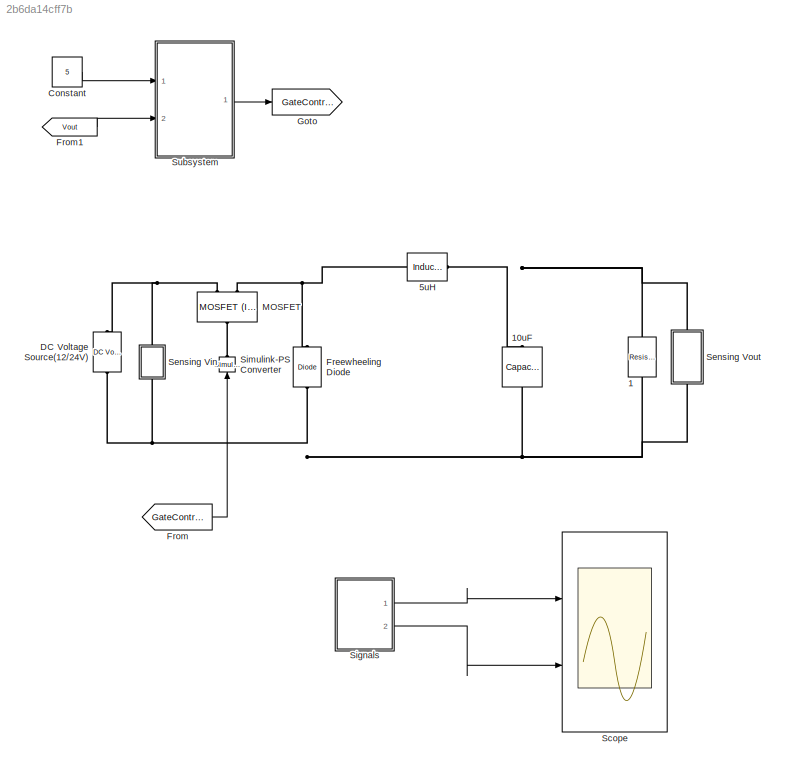
MODEL slx_2b6da14cff7b
KIND model
CONFIG AbsTol = auto
CONFIG EnableMultiTasking = off
CONFIG FixedStep = auto
CONFIG MaxStep = auto
CONFIG MinStep = auto
CONFIG RelTol = 1e-3
CONFIG SampleTimeConstraint = Unconstrained
CONFIG SolverName = VariableStepAuto
CONFIG StartTime = 0.0
CONFIG StopTime = 10.0
BLOCK [Reference] 1  REF=ee_lib/Passive/Resistor
  NameLocation = left
  Ports = [0, 0, 0, 0, 0, 1, 1]
  SourceBlock = ee_lib/Passive/Resistor
  SourceProductBaseCode = PS
  SourceType = Resistor
BLOCK [Reference] 10uF  REF=ee_lib/Passive/Capacitor
  NameLocation = left
  Ports = [0, 0, 0, 0, 0, 1, 1]
  SourceBlock = ee_lib/Passive/Capacitor
  SourceProductBaseCode = PS
  SourceType = Capacitor
BLOCK [Reference] 5uH  REF=ee_lib/Passive/Inductor
  Ports = [0, 0, 0, 0, 0, 1, 1]
  SourceBlock = ee_lib/Passive/Inductor
  SourceProductBaseCode = PS
  SourceType = Inductor
BLOCK [Constant] Constant
  Value = 5
BLOCK [Reference] DC Voltage Source(12//24V)  REF=ee_lib/Additional
Components/SPICE Sources/DC Voltage Source
  NameLocation = left
  Ports = [0, 0, 0, 0, 0, 1, 1]
  SourceBlock = ee_lib/Additional\nComponents/SPICE Sources/DC Voltage Source
  SourceProductBaseCode = PS
  SourceType = DC Voltage Source
BLOCK [Reference] Freewheeling Diode  REF=ee_lib/Semiconductors &
Converters/Diode
  NameLocation = right
  Ports = [0, 0, 0, 0, 0, 1, 1]
  SourceBlock = ee_lib/Semiconductors &\nConverters/Diode
  SourceProductBaseCode = PS
  SourceType = Diode
BLOCK [From] From
  GotoTag = GateControl
BLOCK [From] From1
  GotoTag = Vout
  TagVisibility = global
BLOCK [Goto] Goto
  GotoTag = GateControl
BLOCK [Reference] MOSFET  REF=ee_lib/Semiconductors &
Converters/MOSFET
(Ideal,
Switching)
  NameLocation = right
  Ports = [0, 0, 0, 0, 0, 1, 2]
  SourceBlock = ee_lib/Semiconductors &\nConverters/MOSFET\n(Ideal,\nSwitching)
  SourceProductBaseCode = PS
  SourceType = MOSFET\n(Ideal,\nSwitching)
BLOCK [Scope] Scope
  Floating = off
  NumInputPorts = 2
  Ports = [2]
  ScopeSpecificationString = Simulink.scopes.TimeScopeBlockCfg('CurrentConfiguration', extmgr.ConfigurationSet(extmgr.Configuration('Core','General UI',true),extmgr.Configuration('Core','Source UI',true),extmgr.Configuration('Sources','WiredSimulink',true),extmgr.Configuration('Visuals','Time Domain',true),extmgr.Configuration('Tools','Plot Navigation',true),extmgr.Configuration('Tools','Measurements',true)),'Version','2021a'...<+1ch>
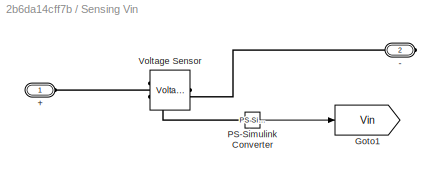
BLOCK [SubSystem] Sensing Vin
  NameLocation = right
  Ports = [0, 0, 0, 0, 0, 1, 1]
  RequestExecContextInheritance = off
BLOCK [PMIOPort] Sensing Vin/+
  Side = Left
BLOCK [PMIOPort] Sensing Vin/-
  Port = 2
  Side = Right
BLOCK [Goto] Sensing Vin/Goto1
  GotoTag = Vin
  TagVisibility = global
BLOCK [Reference] Sensing Vin/PS-Simulink Converter  REF=nesl_utility/PS-Simulink
Converter
  Ports = [0, 1, 0, 0, 0, 1]
  SourceBlock = nesl_utility/PS-Simulink\nConverter
  SourceProductBaseCode = PW,SS
  SourceType = PS-Simulink\nConverter
BLOCK [Reference] Sensing Vin/Voltage Sensor  REF=fl_lib/Electrical/Electrical Sensors/Voltage Sensor
  NameLocation = top
  Ports = [0, 0, 0, 0, 0, 1, 2]
  SourceBlock = fl_lib/Electrical/Electrical Sensors/Voltage Sensor
  SourceProductBaseCode = SS
  SourceType = Voltage Sensor
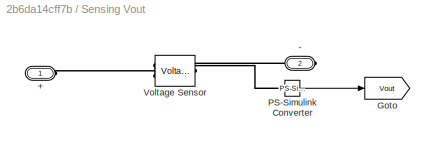
BLOCK [SubSystem] Sensing Vout
  NameLocation = right
  Ports = [0, 0, 0, 0, 0, 1, 1]
  RequestExecContextInheritance = off
BLOCK [PMIOPort] Sensing Vout/+
  Side = Left
BLOCK [PMIOPort] Sensing Vout/-
  Port = 2
  Side = Right
BLOCK [Goto] Sensing Vout/Goto
  GotoTag = Vout
  TagVisibility = global
BLOCK [Reference] Sensing Vout/PS-Simulink Converter  REF=nesl_utility/PS-Simulink
Converter
  Ports = [0, 1, 0, 0, 0, 1]
  SourceBlock = nesl_utility/PS-Simulink\nConverter
  SourceProductBaseCode = PW,SS
  SourceType = PS-Simulink\nConverter
BLOCK [Reference] Sensing Vout/Voltage Sensor  REF=fl_lib/Electrical/Electrical Sensors/Voltage Sensor
  NameLocation = top
  Ports = [0, 0, 0, 0, 0, 1, 2]
  SourceBlock = fl_lib/Electrical/Electrical Sensors/Voltage Sensor
  SourceProductBaseCode = SS
  SourceType = Voltage Sensor
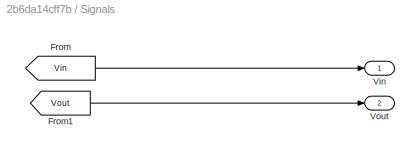
BLOCK [SubSystem] Signals
  Ports = [0, 2]
  RequestExecContextInheritance = off
BLOCK [From] Signals/From
  GotoTag = Vin
  TagVisibility = global
BLOCK [From] Signals/From1
  GotoTag = Vout
  TagVisibility = global
BLOCK [Outport] Signals/Vin
BLOCK [Outport] Signals/Vout
  Port = 2
BLOCK [Reference] Simulink-PS Converter  REF=nesl_utility/Simulink-PS
Converter
  NameLocation = right
  Ports = [1, 0, 0, 0, 0, 0, 1]
  SourceBlock = nesl_utility/Simulink-PS\nConverter
  SourceProductBaseCode = PW,SS
  SourceType = Simulink-PS\nConverter
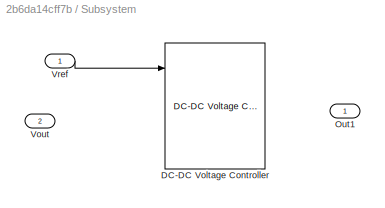
BLOCK [SubSystem] Subsystem
  Ports = [2, 1]
  RequestExecContextInheritance = off
BLOCK [Reference] Subsystem/DC-DC Voltage Controller  REF=eeDcDcVoltageController/DC-DC Voltage Controller
  Ports = [4, 1]
  SourceBlock = eeDcDcVoltageController/DC-DC Voltage Controller
  SourceProductBaseCode = PS
  SourceType = DC-DC Voltage Controller
BLOCK [Outport] Subsystem/Out1
BLOCK [Inport] Subsystem/Vout
  Port = 2
BLOCK [Inport] Subsystem/Vref
LINE Constant:1 -> Subsystem:1
LINE From1:1 -> Subsystem:2
LINE From:1 -> Simulink-PS Converter:1
LINE Sensing Vin/PS-Simulink Converter:1 -> Sensing Vin/Goto1:1
LINE Sensing Vout/PS-Simulink Converter:1 -> Sensing Vout/Goto:1
LINE Signals/From1:1 -> Signals/Vout:1
LINE Signals/From:1 -> Signals/Vin:1
LINE Signals:1 -> Scope:1
LINE Signals:2 -> Scope:2
LINE Subsystem/Vref:1 -> Subsystem/DC-DC Voltage Controller:1
LINE Subsystem:1 -> Goto:1
PNET net1: 10uF:LConn1 -- 1:LConn1 -- 5uH:RConn1 -- Sensing Vout:LConn1
PNET net2: 10uF:RConn1 -- 1:RConn1 -- DC Voltage Source(12//24V):RConn1 -- Freewheeling Diode:LConn1 -- Sensing Vin:RConn1 -- Sensing Vout:RConn1
PNET net3: 5uH:LConn1 -- Freewheeling Diode:RConn1 -- MOSFET:RConn2
PNET net4: DC Voltage Source(12//24V):LConn1 -- MOSFET:RConn1 -- Sensing Vin:LConn1
PLINE MOSFET:LConn1 -- Simulink-PS Converter:RConn1
PLINE Sensing Vin/+:RConn1 -- Sensing Vin/Voltage Sensor:LConn1
PLINE Sensing Vin/-:RConn1 -- Sensing Vin/Voltage Sensor:RConn2
PLINE Sensing Vin/PS-Simulink Converter:LConn1 -- Sensing Vin/Voltage Sensor:RConn1
PLINE Sensing Vout/+:RConn1 -- Sensing Vout/Voltage Sensor:LConn1
PLINE Sensing Vout/-:RConn1 -- Sensing Vout/Voltage Sensor:RConn2
PLINE Sensing Vout/PS-Simulink Converter:LConn1 -- Sensing Vout/Voltage Sensor:RConn1
note: PNET lines group multi-terminal physical nets as a canonical sorted terminal list (undirected conserving connections); 2-terminal nets keep the pairwise PLINE form
